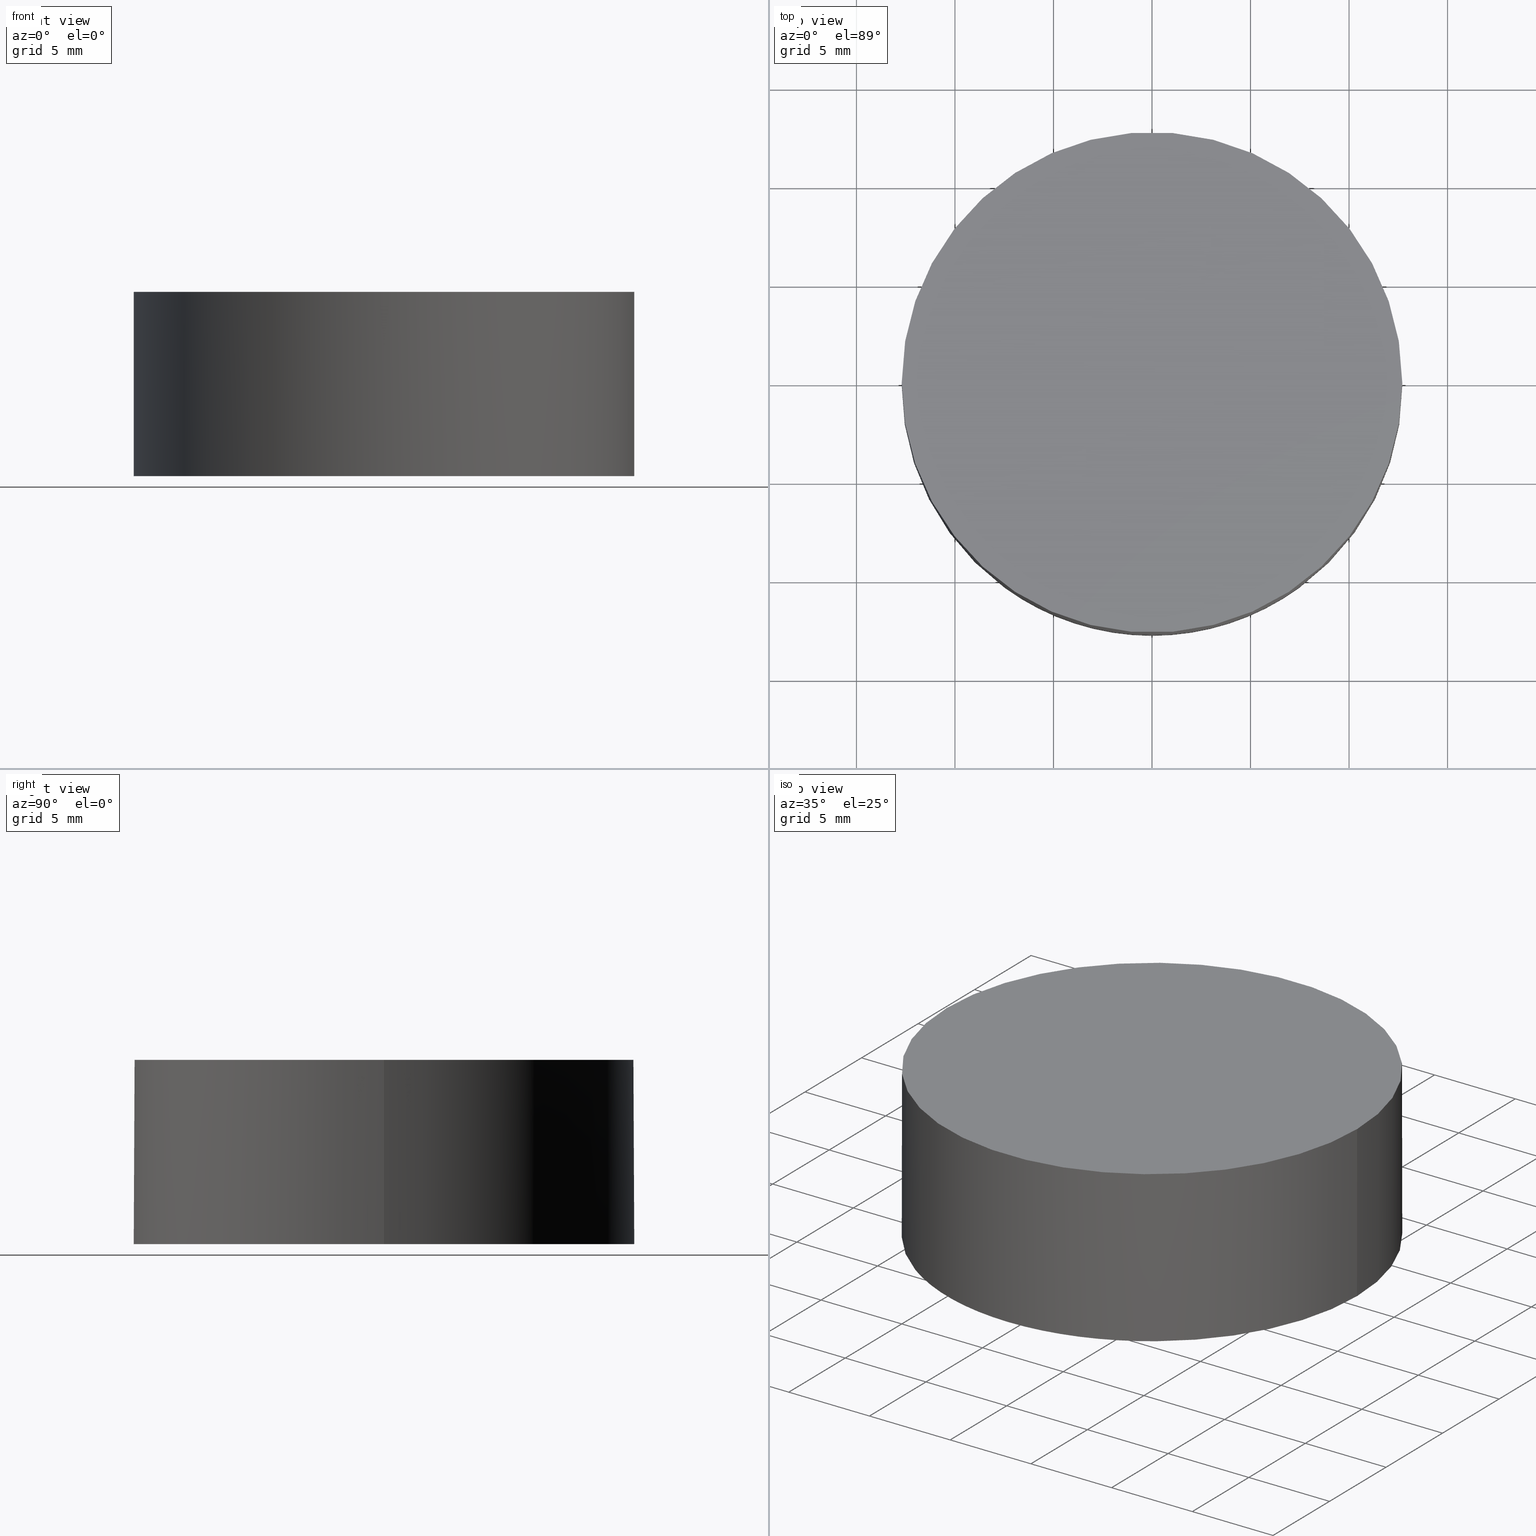
[diagram: canonical four-view strip — front | top / right | iso, engineering-drawing reading convention]
A machine part, canonical four-view strip (front | top / right | iso — engineering-drawing reading convention). The complete STEP part file that produces these views, byte-faithful:
ISO-10303-21;
HEADER;
FILE_DESCRIPTION (( 'STEP AP203' ),
    '1' );
FILE_NAME ('112-1203E UVFS pl-cv 12.7 F-30.STEP',
    '2019-01-16T14:05:18',
    ( '' ),
    ( '' ),
    'SwSTEP 2.0',
    'SolidWorks 2017',
    '' );
FILE_SCHEMA (( 'CONFIG_CONTROL_DESIGN' ));
ENDSEC;

DATA;
#1 = CARTESIAN_POINT ( 'NONE',  ( 12.69999999999999900, 2.442490654175340100E-015, 1.599999999999999900 ) ) ;
#2 =( BOUNDED_SURFACE ( )  B_SPLINE_SURFACE ( 3, 3, ( 
 ( #121, #209, #140, #177 ),
 ( #26, #63, #99, #80 ),
 ( #11, #138, #25, #28 ),
 ( #211, #62, #119, #154 ) ),
 .UNSPECIFIED., .F., .F., .T. ) 
 B_SPLINE_SURFACE_WITH_KNOTS ( ( 4, 4 ),
 ( 4, 4 ),
 ( 0.0000000000000000000, 1.000000000000000000 ),
 ( 0.0000000000000000000, 1.000000000000000000 ),
 .UNSPECIFIED. ) 
 GEOMETRIC_REPRESENTATION_ITEM ( )  RATIONAL_B_SPLINE_SURFACE ( (
 ( 1.000000000000000000, 0.9012452960969777900, 0.9012452960969777900, 1.000000000000000000),
 ( 0.6303203853792274100, 0.5680732823570630000, 0.5680732823570630000, 0.6303203853792274100),
 ( 0.6303203853792274100, 0.5680732823570630000, 0.5680732823570630000, 0.6303203853792274100),
 ( 1.000000000000000000, 0.9012452960969777900, 0.9012452960969777900, 1.000000000000000000) ) ) 
 REPRESENTATION_ITEM ( '' )  SURFACE ( )  );
#3 = SECURITY_CLASSIFICATION_LEVEL ( 'unclassified' ) ;
#4 = CARTESIAN_POINT ( 'NONE',  ( 5.676606443610775300, -12.78476409212511700, -11.40870301204057600 ) ) ;
#5 = APPROVAL_PERSON_ORGANIZATION ( #221, #96, #53 ) ;
#6 = ORIENTED_EDGE ( 'NONE', *, *, #208, .F. ) ;
#7 = ADVANCED_BREP_SHAPE_REPRESENTATION ( '112-1203E UVFS pl-cv 12.7 F-30', ( #176, #70 ), #186 ) ;
#8 = EDGE_CURVE ( 'NONE', #115, #34, #9, .T. ) ;
#9 = LINE ( 'NONE', #139, #192 ) ;
#10 = APPROVAL_DATE_TIME ( #64, #231 ) ;
#11 = CARTESIAN_POINT ( 'NONE',  ( -16.47940858383782000, -6.760987157577682500, -5.944513525790873700 ) ) ;
#12 = ADVANCED_FACE ( 'NONE', ( #22 ), #2, .F. ) ;
#13 = DIRECTION ( 'NONE',  ( 0.0000000000000000000, 0.0000000000000000000, 1.000000000000000000 ) ) ;
#14 = CALENDAR_DATE ( 2019, 16, 1 ) ;
#15 = CARTESIAN_POINT ( 'NONE',  ( 12.69999999999999900, 2.442490654175340100E-015, -7.750957191134370200 ) ) ;
#16 = CARTESIAN_POINT ( 'NONE',  ( 4.996003610813200500E-016, 2.442490654175340100E-015, -7.750957191134370200 ) ) ;
#17 = APPROVAL_ROLE ( '' ) ;
#18 = CC_DESIGN_PERSON_AND_ORGANIZATION_ASSIGNMENT ( #101, #92, ( #175 ) ) ;
#19 =( NAMED_UNIT ( * ) SI_UNIT ( $, .STERADIAN. ) SOLID_ANGLE_UNIT ( ) );
#20 = DIRECTION ( 'NONE',  ( 0.0000000000000000000, 0.0000000000000000000, 1.000000000000000000 ) ) ;
#21 = COORDINATED_UNIVERSAL_TIME_OFFSET ( 2, 0, .AHEAD. ) ;
#22 = FACE_OUTER_BOUND ( 'NONE', #124, .T. ) ;
#23 = AXIS2_PLACEMENT_3D ( 'NONE', #235, #232, #123 ) ;
#24 = CYLINDRICAL_SURFACE ( 'NONE', #230, 12.69999999999999900 ) ;
#25 = CARTESIAN_POINT ( 'NONE',  ( -7.154924903406700000, -6.760987157577680800, 4.187572716380210600 ) ) ;
#26 = CARTESIAN_POINT ( 'NONE',  ( -16.47940858383782000, 6.760987157577674500, -5.944513525790876300 ) ) ;
#27 = COORDINATED_UNIVERSAL_TIME_OFFSET ( 2, 0, .AHEAD. ) ;
#28 = CARTESIAN_POINT ( 'NONE',  ( -3.469446951953614200E-015, -6.760987157577681600, 4.187572716380210600 ) ) ;
#29 = DATE_AND_TIME ( #77, #50 ) ;
#30 = CARTESIAN_POINT ( 'NONE',  ( 7.154924903406703500, 6.760987157577673700, 4.187572716380215000 ) ) ;
#31 = DIRECTION ( 'NONE',  ( 0.0000000000000000000, 0.0000000000000000000, 1.000000000000000000 ) ) ;
#32 = DIRECTION ( 'NONE',  ( 1.000000000000000000, 0.0000000000000000000, 0.0000000000000000000 ) ) ;
#33 = DIRECTION ( 'NONE',  ( -0.0000000000000000000, -0.0000000000000000000, -1.000000000000000000 ) ) ;
#34 = VERTEX_POINT ( 'NONE', #81 ) ;
#35 = CARTESIAN_POINT ( 'NONE',  ( 0.0000000000000000000, -8.881784197001250400E-016, -14.27999999999999900 ) ) ;
#36 = APPROVAL_STATUS ( 'not_yet_approved' ) ;
#37 = DIRECTION ( 'NONE',  ( 0.0000000000000000000, 0.0000000000000000000, 1.000000000000000000 ) ) ;
#38 = ORIENTED_EDGE ( 'NONE', *, *, #174, .T. ) ;
#39 =( LENGTH_UNIT ( ) NAMED_UNIT ( * ) SI_UNIT ( .MILLI., .METRE. ) );
#40 = CARTESIAN_POINT ( 'NONE',  ( 4.996003610813200500E-016, 2.442490654175340100E-015, 1.599999999999999900 ) ) ;
#41 = CIRCLE ( 'NONE', #82, 12.69999999999999900 ) ;
#42 = CC_DESIGN_PERSON_AND_ORGANIZATION_ASSIGNMENT ( #150, #146, ( #175 ) ) ;
#43 = DIRECTION ( 'NONE',  ( 0.0000000000000000000, 0.0000000000000000000, 1.000000000000000000 ) ) ;
#44 = PERSON_AND_ORGANIZATION ( #226, #162 ) ;
#45 = VERTEX_POINT ( 'NONE', #48 ) ;
#46 = DIRECTION ( 'NONE',  ( 1.000000000000000000, 0.0000000000000000000, 0.0000000000000000000 ) ) ;
#47 = CARTESIAN_POINT ( 'NONE',  ( 13.24997607138695500, -6.760987157577687000, 0.4401333728962221700 ) ) ;
#48 = CARTESIAN_POINT ( 'NONE',  ( 4.665657008817360900E-015, 12.69999999999999900, -7.750957191134371100 ) ) ;
#49 = CARTESIAN_POINT ( 'NONE',  ( 0.0000000000000000000, 0.0000000000000000000, 0.0000000000000000000 ) ) ;
#50 = LOCAL_TIME ( 16, 5, 18.00000000000000000, #21 ) ;
#51 = VERTEX_POINT ( 'NONE', #107 ) ;
#52 = MECHANICAL_CONTEXT ( 'NONE', #56, 'mechanical' ) ;
#53 = APPROVAL_ROLE ( '' ) ;
#54 = APPLICATION_PROTOCOL_DEFINITION ( 'international standard', 'config_control_design', 1994, #93 ) ;
#55 = AXIS2_PLACEMENT_3D ( 'NONE', #159, #219, #46 ) ;
#56 = APPLICATION_CONTEXT ( 'configuration controlled 3d designs of mechanical parts and assemblies' ) ;
#57 = CC_DESIGN_APPROVAL ( #95, ( #165 ) ) ;
#58 = COORDINATED_UNIVERSAL_TIME_OFFSET ( 2, 0, .AHEAD. ) ;
#59 = DATE_AND_TIME ( #147, #91 ) ;
#60 = ORIENTED_EDGE ( 'NONE', *, *, #196, .F. ) ;
#61 = DATE_AND_TIME ( #14, #113 ) ;
#62 = CARTESIAN_POINT ( 'NONE',  ( -4.564174688786525100, -12.78476409212511600, -9.209405170684052100 ) ) ;
#63 = CARTESIAN_POINT ( 'NONE',  ( -13.24997607138696600, 6.760987157577676300, 0.4401333728962196200 ) ) ;
#64 = DATE_AND_TIME ( #185, #187 ) ;
#65 = ORIENTED_EDGE ( 'NONE', *, *, #106, .F. ) ;
#66 = CARTESIAN_POINT ( 'NONE',  ( 2.464632914682613100, 12.78476409212510700, -7.918537345176943600 ) ) ;
#67 = CIRCLE ( 'NONE', #100, 14.27999999999999900 ) ;
#68 = PLANE ( 'NONE',  #152 ) ;
#69 =( NAMED_UNIT ( * ) PLANE_ANGLE_UNIT ( ) SI_UNIT ( $, .RADIAN. ) );
#70 = AXIS2_PLACEMENT_3D ( 'NONE', #49, #163, #128 ) ;
#71 = CIRCLE ( 'NONE', #55, 12.69999999999999900 ) ;
#72 = ORIENTED_EDGE ( 'NONE', *, *, #184, .T. ) ;
#73 = APPROVAL_STATUS ( 'not_yet_approved' ) ;
#74 = EDGE_CURVE ( 'NONE', #131, #45, #199, .T. ) ;
#75 = LINE ( 'NONE', #15, #204 ) ;
#76 = AXIS2_PLACEMENT_3D ( 'NONE', #40, #169, #220 ) ;
#77 = CALENDAR_DATE ( 2019, 16, 1 ) ;
#78 = VERTEX_POINT ( 'NONE', #1 ) ;
#79 = AXIS2_PLACEMENT_3D ( 'NONE', #16, #31, #161 ) ;
#80 = CARTESIAN_POINT ( 'NONE',  ( 1.734723475976807100E-015, 6.760987157577674500, 4.187572716380212300 ) ) ;
#81 = CARTESIAN_POINT ( 'NONE',  ( -12.69999999999999900, 3.997792089092478900E-015, 1.599999999999999900 ) ) ;
#82 = AXIS2_PLACEMENT_3D ( 'NONE', #132, #37, #127 ) ;
#83 = DESIGN_CONTEXT ( 'detailed design', #93, 'design' ) ;
#84 = FACE_OUTER_BOUND ( 'NONE', #134, .T. ) ;
#85 = ORIENTED_EDGE ( 'NONE', *, *, #174, .F. ) ;
#86 = CARTESIAN_POINT ( 'NONE',  ( 4.996003610813200500E-016, 2.442490654175340100E-015, 1.599999999999999900 ) ) ;
#87 = CARTESIAN_POINT ( 'NONE',  ( 13.24997607138696600, 6.760987157577671000, 0.4401333728962240100 ) ) ;
#88 = CARTESIAN_POINT ( 'NONE',  ( 5.676606443610796600, 12.78476409212510500, -11.40870301204058300 ) ) ;
#89 = CARTESIAN_POINT ( 'NONE',  ( 4.564174688786533100, 12.78476409212510500, -9.209405170684052100 ) ) ;
#90 = DATE_TIME_ROLE ( 'creation_date' ) ;
#91 = LOCAL_TIME ( 16, 5, 18.00000000000000000, #27 ) ;
#92 = PERSON_AND_ORGANIZATION_ROLE ( 'design_supplier' ) ;
#93 = APPLICATION_CONTEXT ( 'configuration controlled 3d designs of mechanical parts and assemblies' ) ;
#94 = ORIENTED_EDGE ( 'NONE', *, *, #74, .T. ) ;
#95 = APPROVAL ( #36, 'UNSPECIFIED' ) ;
#96 = APPROVAL ( #166, 'UNSPECIFIED' ) ;
#97 = PERSON_AND_ORGANIZATION ( #226, #162 ) ;
#98 = ORIENTED_EDGE ( 'NONE', *, *, #212, .T. ) ;
#99 = CARTESIAN_POINT ( 'NONE',  ( -7.154924903406697300, 6.760987157577676300, 4.187572716380212300 ) ) ;
#100 = AXIS2_PLACEMENT_3D ( 'NONE', #35, #222, #114 ) ;
#101 = PERSON_AND_ORGANIZATION ( #226, #162 ) ;
#102 = EDGE_LOOP ( 'NONE', ( #137, #60 ) ) ;
#103 = CARTESIAN_POINT ( 'NONE',  ( 16.47940858383780900, -6.760987157577691400, -5.944513525790863900 ) ) ;
#104 = CYLINDRICAL_SURFACE ( 'NONE', #225, 12.69999999999999900 ) ;
#105 = CARTESIAN_POINT ( 'NONE',  ( 7.154924903406695500, -6.760987157577684300, 4.187572716380212300 ) ) ;
#106 = EDGE_CURVE ( 'NONE', #45, #115, #71, .T. ) ;
#107 = CARTESIAN_POINT ( 'NONE',  ( -1.795195845620097900E-015, -12.69999999999999900, -7.750957191134370200 ) ) ;
#108 = CARTESIAN_POINT ( 'NONE',  ( 4.996003610813200500E-016, 2.442490654175340100E-015, -7.750957191134370200 ) ) ;
#109 = SECURITY_CLASSIFICATION ( '', '', #3 ) ;
#110 = CARTESIAN_POINT ( 'NONE',  ( 4.564174688786515300, -12.78476409212511600, -9.209405170684052100 ) ) ;
#111 = DATE_AND_TIME ( #171, #116 ) ;
#112 = CARTESIAN_POINT ( 'NONE',  ( 0.0000000000000000000, 26.11199999999999800, 1.600000000000000100 ) ) ;
#113 = LOCAL_TIME ( 16, 5, 18.00000000000000000, #157 ) ;
#114 = DIRECTION ( 'NONE',  ( 2.543642856077738600E-016, 1.000000000000000000, -4.859169400495258500E-016 ) ) ;
#115 = VERTEX_POINT ( 'NONE', #233 ) ;
#116 = LOCAL_TIME ( 16, 5, 18.00000000000000000, #214 ) ;
#117 = CC_DESIGN_APPROVAL ( #231, ( #175 ) ) ;
#118 = PERSON_AND_ORGANIZATION ( #226, #162 ) ;
#119 = CARTESIAN_POINT ( 'NONE',  ( -2.464632914682606900, -12.78476409212511600, -7.918537345176949800 ) ) ;
#120 = CIRCLE ( 'NONE', #79, 12.69999999999999900 ) ;
#121 = CARTESIAN_POINT ( 'NONE',  ( -5.676606443610793000, 12.78476409212510800, -11.40870301204058600 ) ) ;
#122 = ADVANCED_FACE ( 'NONE', ( #141 ), #104, .T. ) ;
#123 = DIRECTION ( 'NONE',  ( 1.000000000000000000, 0.0000000000000000000, 0.0000000000000000000 ) ) ;
#124 = EDGE_LOOP ( 'NONE', ( #65, #215, #172 ) ) ;
#125 = CARTESIAN_POINT ( 'NONE',  ( -1.853594693535234500E-015, -12.78476409212511400, -7.918537345176949000 ) ) ;
#126 = DIRECTION ( 'NONE',  ( 0.0000000000000000000, 0.0000000000000000000, 1.000000000000000000 ) ) ;
#127 = DIRECTION ( 'NONE',  ( 1.000000000000000000, 0.0000000000000000000, 0.0000000000000000000 ) ) ;
#128 = DIRECTION ( 'NONE',  ( 1.000000000000000000, 0.0000000000000000000, 0.0000000000000000000 ) ) ;
#129 = CC_DESIGN_PERSON_AND_ORGANIZATION_ASSIGNMENT ( #118, #133, ( #183 ) ) ;
#130 = PERSON_AND_ORGANIZATION_ROLE ( 'classification_officer' ) ;
#131 = VERTEX_POINT ( 'NONE', #179 ) ;
#132 = CARTESIAN_POINT ( 'NONE',  ( 4.996003610813200500E-016, 2.442490654175340100E-015, -7.750957191134370200 ) ) ;
#133 = PERSON_AND_ORGANIZATION_ROLE ( 'design_owner' ) ;
#134 = EDGE_LOOP ( 'NONE', ( #6, #200, #224 ) ) ;
#135 = PRODUCT_RELATED_PRODUCT_CATEGORY ( 'detail', '', ( #183 ) ) ;
#136 = FACE_OUTER_BOUND ( 'NONE', #205, .T. ) ;
#137 = ORIENTED_EDGE ( 'NONE', *, *, #212, .F. ) ;
#138 = CARTESIAN_POINT ( 'NONE',  ( -13.24997607138696600, -6.760987157577680800, 0.4401333728962214000 ) ) ;
#139 = CARTESIAN_POINT ( 'NONE',  ( -12.69999999999999900, 3.997792089092478900E-015, -7.750957191134370200 ) ) ;
#140 = CARTESIAN_POINT ( 'NONE',  ( -2.464632914682609600, 12.78476409212510800, -7.918537345176949800 ) ) ;
#141 = FACE_OUTER_BOUND ( 'NONE', #229, .T. ) ;
#142 = ADVANCED_FACE ( 'NONE', ( #136 ), #24, .T. ) ;
#143 = DIRECTION ( 'NONE',  ( 1.000000000000000000, 0.0000000000000000000, 0.0000000000000000000 ) ) ;
#144 = CARTESIAN_POINT ( 'NONE',  ( 2.464632914682599800, -12.78476409212511600, -7.918537345176949800 ) ) ;
#145 = CARTESIAN_POINT ( 'NONE',  ( 4.650380076379417600E-015, 12.78476409212510800, -7.918537345176945400 ) ) ;
#146 = PERSON_AND_ORGANIZATION_ROLE ( 'creator' ) ;
#147 = CALENDAR_DATE ( 2019, 16, 1 ) ;
#148 = DATE_TIME_ROLE ( 'classification_date' ) ;
#149 = SHAPE_DEFINITION_REPRESENTATION ( #180, #7 ) ;
#150 = PERSON_AND_ORGANIZATION ( #226, #162 ) ;
#151 = ORIENTED_EDGE ( 'NONE', *, *, #234, .T. ) ;
#152 = AXIS2_PLACEMENT_3D ( 'NONE', #112, #20, #164 ) ;
#153 = CLOSED_SHELL ( 'NONE', ( #12, #142, #122, #206, #210 ) ) ;
#154 = CARTESIAN_POINT ( 'NONE',  ( -3.469446951953614200E-015, -12.78476409212511400, -7.918537345176949000 ) ) ;
#155 = UNCERTAINTY_MEASURE_WITH_UNIT (LENGTH_MEASURE( 1.000000000000000100E-005 ), #39, 'distance_accuracy_value', 'NONE');
#156 = CC_DESIGN_PERSON_AND_ORGANIZATION_ASSIGNMENT ( #207, #197, ( #165 ) ) ;
#157 = COORDINATED_UNIVERSAL_TIME_OFFSET ( 2, 0, .AHEAD. ) ;
#158 = ORIENTED_EDGE ( 'NONE', *, *, #106, .T. ) ;
#159 = CARTESIAN_POINT ( 'NONE',  ( 4.996003610813200500E-016, 2.442490654175340100E-015, -7.750957191134370200 ) ) ;
#160 = CARTESIAN_POINT ( 'NONE',  ( 16.47940858383782000, 6.760987157577669200, -5.944513525790866600 ) ) ;
#161 = DIRECTION ( 'NONE',  ( 1.000000000000000000, 0.0000000000000000000, 0.0000000000000000000 ) ) ;
#162 = ORGANIZATION ( 'UNSPECIFIED', 'UNSPECIFIED', '' ) ;
#163 = DIRECTION ( 'NONE',  ( 0.0000000000000000000, 0.0000000000000000000, 1.000000000000000000 ) ) ;
#164 = DIRECTION ( 'NONE',  ( 1.000000000000000000, 0.0000000000000000000, -0.0000000000000000000 ) ) ;
#165 = PRODUCT_DEFINITION ( 'UNKNOWN', '', #175, #83 ) ;
#166 = APPROVAL_STATUS ( 'not_yet_approved' ) ;
#167 = CIRCLE ( 'NONE', #76, 12.69999999999999900 ) ;
#168 = APPROVAL_ROLE ( '' ) ;
#169 = DIRECTION ( 'NONE',  ( -0.0000000000000000000, -0.0000000000000000000, -1.000000000000000000 ) ) ;
#170 = APPROVAL_DATE_TIME ( #59, #95 ) ;
#171 = CALENDAR_DATE ( 2019, 16, 1 ) ;
#172 = ORIENTED_EDGE ( 'NONE', *, *, #184, .F. ) ;
#173 = ORIENTED_EDGE ( 'NONE', *, *, #8, .T. ) ;
#174 = EDGE_CURVE ( 'NONE', #131, #78, #75, .T. ) ;
#175 = PRODUCT_DEFINITION_FORMATION_WITH_SPECIFIED_SOURCE ( 'ANY', '', #183, .NOT_KNOWN. ) ;
#176 = MANIFOLD_SOLID_BREP ( 'Imported1', #153 ) ;
#177 = CARTESIAN_POINT ( 'NONE',  ( 0.0000000000000000000, 12.78476409212510800, -7.918537345176947200 ) ) ;
#178 = APPROVAL_PERSON_ORGANIZATION ( #44, #95, #168 ) ;
#179 = CARTESIAN_POINT ( 'NONE',  ( 12.69999999999999900, 2.442490654175340100E-015, -7.750957191134370200 ) ) ;
#180 = PRODUCT_DEFINITION_SHAPE ( 'NONE', 'NONE',  #165 ) ;
#181 = APPLICATION_PROTOCOL_DEFINITION ( 'international standard', 'config_control_design', 1994, #56 ) ;
#182 = ORIENTED_EDGE ( 'NONE', *, *, #196, .T. ) ;
#183 = PRODUCT ( '112-1203E UVFS pl-cv 12.7 F-30', '112-1203E UVFS pl-cv 12.7 F-30', '', ( #52 ) ) ;
#184 = EDGE_CURVE ( 'NONE', #115, #51, #120, .T. ) ;
#185 = CALENDAR_DATE ( 2019, 16, 1 ) ;
#186 =( GEOMETRIC_REPRESENTATION_CONTEXT ( 3 ) GLOBAL_UNCERTAINTY_ASSIGNED_CONTEXT ( ( #155 ) ) GLOBAL_UNIT_ASSIGNED_CONTEXT ( ( #39, #69, #19 ) ) REPRESENTATION_CONTEXT ( 'NONE', 'WORKASPACE' ) );
#187 = LOCAL_TIME ( 16, 5, 18.00000000000000000, #58 ) ;
#188 = ORIENTED_EDGE ( 'NONE', *, *, #8, .F. ) ;
#189 = CC_DESIGN_DATE_AND_TIME_ASSIGNMENT ( #111, #90, ( #165 ) ) ;
#190 = DIRECTION ( 'NONE',  ( 1.000000000000000000, 0.0000000000000000000, 0.0000000000000000000 ) ) ;
#191 = CIRCLE ( 'NONE', #201, 12.69999999999999900 ) ;
#192 = VECTOR ( 'NONE', #43, 1000.000000000000000 ) ;
#193 = DIRECTION ( 'NONE',  ( 0.0000000000000000000, 0.0000000000000000000, 1.000000000000000000 ) ) ;
#194 =( BOUNDED_SURFACE ( )  B_SPLINE_SURFACE ( 3, 3, ( 
 ( #145, #66, #89, #88 ),
 ( #217, #30, #87, #160 ),
 ( #216, #105, #47, #103 ),
 ( #125, #144, #110, #4 ) ),
 .UNSPECIFIED., .F., .F., .F. ) 
 B_SPLINE_SURFACE_WITH_KNOTS ( ( 4, 4 ),
 ( 4, 4 ),
 ( 0.0000000000000000000, 1.000000000000000000 ),
 ( 0.0000000000000000000, 1.000000000000000000 ),
 .UNSPECIFIED. ) 
 GEOMETRIC_REPRESENTATION_ITEM ( )  RATIONAL_B_SPLINE_SURFACE ( (
 ( 1.000000000000000000, 0.9012452960969779000, 0.9012452960969779000, 1.000000000000000000),
 ( 0.6303203853792274100, 0.5680732823570630000, 0.5680732823570630000, 0.6303203853792274100),
 ( 0.6303203853792274100, 0.5680732823570630000, 0.5680732823570630000, 0.6303203853792274100),
 ( 1.000000000000000000, 0.9012452960969779000, 0.9012452960969779000, 1.000000000000000000) ) ) 
 REPRESENTATION_ITEM ( '' )  SURFACE ( )  );
#195 = FACE_OUTER_BOUND ( 'NONE', #102, .T. ) ;
#196 = EDGE_CURVE ( 'NONE', #34, #78, #191, .T. ) ;
#197 = PERSON_AND_ORGANIZATION_ROLE ( 'creator' ) ;
#198 = CC_DESIGN_DATE_AND_TIME_ASSIGNMENT ( #29, #148, ( #109 ) ) ;
#199 = CIRCLE ( 'NONE', #23, 12.69999999999999900 ) ;
#200 = ORIENTED_EDGE ( 'NONE', *, *, #74, .F. ) ;
#201 = AXIS2_PLACEMENT_3D ( 'NONE', #86, #33, #32 ) ;
#202 = PERSON_AND_ORGANIZATION ( #226, #162 ) ;
#203 = CC_DESIGN_APPROVAL ( #96, ( #109 ) ) ;
#204 = VECTOR ( 'NONE', #193, 1000.000000000000000 ) ;
#205 = EDGE_LOOP ( 'NONE', ( #94, #158, #173, #182, #85 ) ) ;
#206 = ADVANCED_FACE ( 'NONE', ( #84 ), #194, .F. ) ;
#207 = PERSON_AND_ORGANIZATION ( #226, #162 ) ;
#208 = EDGE_CURVE ( 'NONE', #45, #51, #67, .T. ) ;
#209 = CARTESIAN_POINT ( 'NONE',  ( -4.564174688786531300, 12.78476409212510800, -9.209405170684052100 ) ) ;
#210 = ADVANCED_FACE ( 'NONE', ( #195 ), #68, .T. ) ;
#211 = CARTESIAN_POINT ( 'NONE',  ( -5.676606443610784100, -12.78476409212511400, -11.40870301204057900 ) ) ;
#212 = EDGE_CURVE ( 'NONE', #78, #34, #167, .T. ) ;
#213 = CC_DESIGN_SECURITY_CLASSIFICATION ( #109, ( #175 ) ) ;
#214 = COORDINATED_UNIVERSAL_TIME_OFFSET ( 2, 0, .AHEAD. ) ;
#215 = ORIENTED_EDGE ( 'NONE', *, *, #208, .T. ) ;
#216 = CARTESIAN_POINT ( 'NONE',  ( 2.339834529557981100E-015, -6.760987157577682500, 4.187572716380214100 ) ) ;
#217 = CARTESIAN_POINT ( 'NONE',  ( 5.779341866239143700E-015, 6.760987157577674500, 4.187572716380215900 ) ) ;
#218 = CARTESIAN_POINT ( 'NONE',  ( 4.996003610813200500E-016, 2.442490654175340100E-015, -7.750957191134370200 ) ) ;
#219 = DIRECTION ( 'NONE',  ( 0.0000000000000000000, 0.0000000000000000000, 1.000000000000000000 ) ) ;
#220 = DIRECTION ( 'NONE',  ( 1.000000000000000000, 0.0000000000000000000, 0.0000000000000000000 ) ) ;
#221 = PERSON_AND_ORGANIZATION ( #226, #162 ) ;
#222 = DIRECTION ( 'NONE',  ( 1.000000000000000000, -2.543642856077740100E-016, -2.198225105293790000E-016 ) ) ;
#223 = APPROVAL_DATE_TIME ( #61, #96 ) ;
#224 = ORIENTED_EDGE ( 'NONE', *, *, #234, .F. ) ;
#225 = AXIS2_PLACEMENT_3D ( 'NONE', #108, #126, #190 ) ;
#226 = PERSON ( 'UNSPECIFIED', 'UNSPECIFIED', 'UNSPECIFIED', ('UNSPECIFIED'), ('UNSPECIFIED'), ('UNSPECIFIED') ) ;
#227 = CC_DESIGN_PERSON_AND_ORGANIZATION_ASSIGNMENT ( #97, #130, ( #109 ) ) ;
#228 = APPROVAL_PERSON_ORGANIZATION ( #202, #231, #17 ) ;
#229 = EDGE_LOOP ( 'NONE', ( #188, #72, #151, #38, #98 ) ) ;
#230 = AXIS2_PLACEMENT_3D ( 'NONE', #218, #13, #143 ) ;
#231 = APPROVAL ( #73, 'UNSPECIFIED' ) ;
#232 = DIRECTION ( 'NONE',  ( 0.0000000000000000000, 0.0000000000000000000, 1.000000000000000000 ) ) ;
#233 = CARTESIAN_POINT ( 'NONE',  ( -12.69999999999999900, 3.997792089092478900E-015, -7.750957191134370200 ) ) ;
#234 = EDGE_CURVE ( 'NONE', #51, #131, #41, .T. ) ;
#235 = CARTESIAN_POINT ( 'NONE',  ( 4.996003610813200500E-016, 2.442490654175340100E-015, -7.750957191134370200 ) ) ;
ENDSEC;
END-ISO-10303-21;
